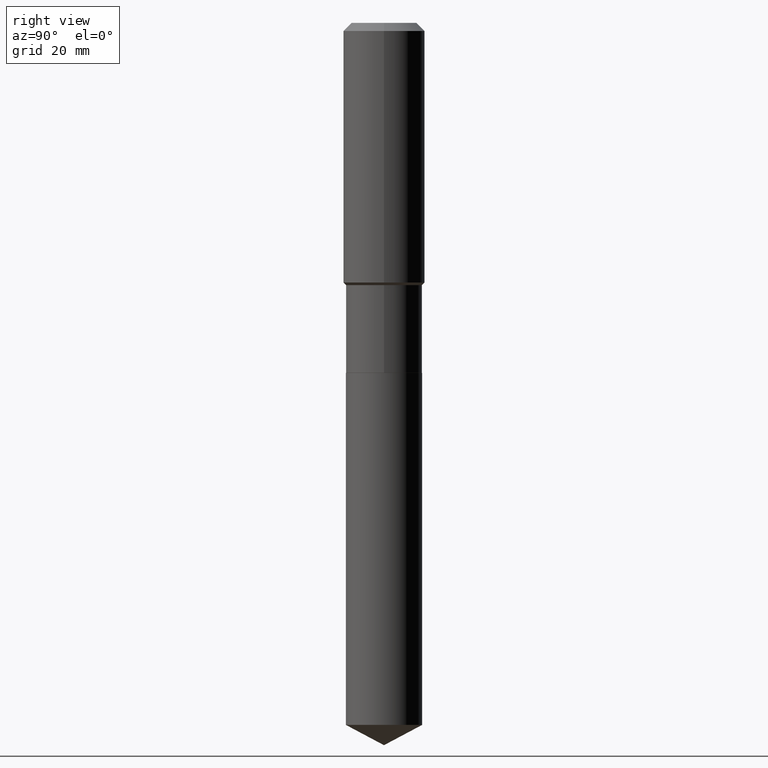
[diagram: clean part render]
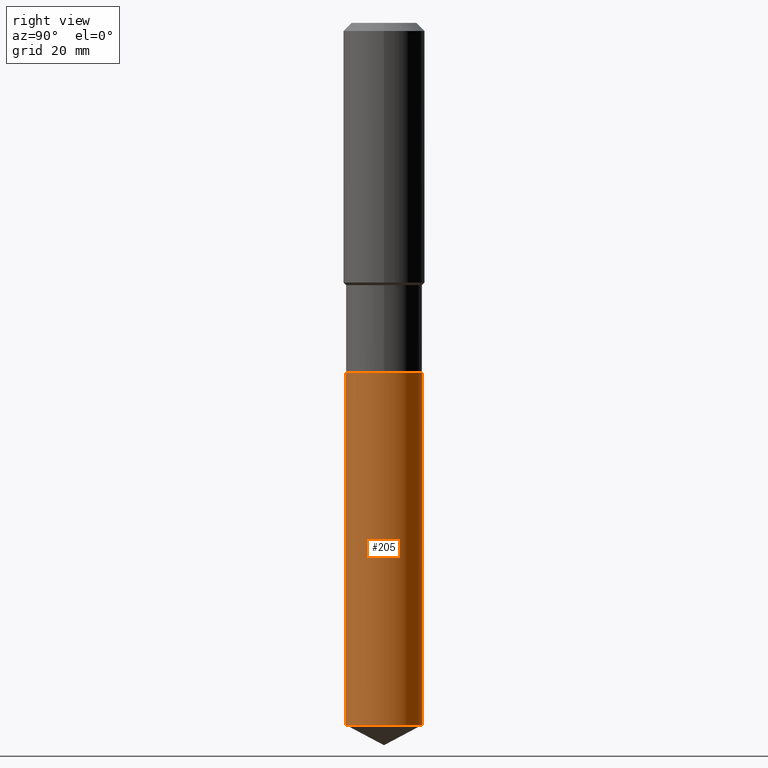
[diagram: same view with one face highlighted and labeled with its STEP entity id]
A machine part, right view. The second image highlights one B-rep face of the part: STEP entity #205.
In plain terms, the highlighted cylindrical surface (partial cylindrical patch) has radius 6.5481 mm, axis along (-0, 0, 1).
Its self-contained STEP definition (entity closure, byte-faithful):
#6 = EDGE_CURVE ( 'NONE', #155, #169, #469, .T. ) ;
#7 = CARTESIAN_POINT ( 'NONE',  ( 5.785001007911558337E-29, -8.259448255167344273E-15, -2.365599999999999703 ) ) ;
#16 = CARTESIAN_POINT ( 'NONE',  ( 1.160379970980934327E-28, -1.656648467126306659E-14, -4.744925308517671247 ) ) ;
#21 = DIRECTION ( 'NONE',  ( -6.982962677686265922E-15, -1.000000000000000000, 4.238709066973255853E-15 ) ) ;
#31 = DIRECTION ( 'NONE',  ( -2.445566682734492897E-29, 3.491341174053679928E-15, 1.000000000000000000 ) ) ;
#51 = DIRECTION ( 'NONE',  ( -2.445566682734492897E-29, 3.491341174053680323E-15, 1.000000000000000000 ) ) ;
#60 = LINE ( 'NONE', #404, #100 ) ;
#72 = CIRCLE ( 'NONE', #460, 0.2577999999999999736 ) ;
#77 = ORIENTED_EDGE ( 'NONE', *, *, #295, .F. ) ;
#100 = VECTOR ( 'NONE', #31, 39.37007874015748143 ) ;
#104 = FACE_OUTER_BOUND ( 'NONE', #139, .T. ) ;
#122 = CARTESIAN_POINT ( 'NONE',  ( 1.831779172789595679E-15, 0.2577999999999917025, -2.365600000000000147 ) ) ;
#123 = CARTESIAN_POINT ( 'NONE',  ( 1.831779172789654054E-15, 0.2577999999999834313, -4.744925308517672136 ) ) ;
#139 = EDGE_LOOP ( 'NONE', ( #455, #223, #77, #445 ) ) ;
#141 = VERTEX_POINT ( 'NONE', #193 ) ;
#149 = VERTEX_POINT ( 'NONE', #164 ) ;
#155 = VERTEX_POINT ( 'NONE', #436 ) ;
#164 = CARTESIAN_POINT ( 'NONE',  ( 1.831779172789654449E-15, 0.2577999999999917025, -2.365600000000000147 ) ) ;
#169 = VERTEX_POINT ( 'NONE', #123 ) ;
#173 = DIRECTION ( 'NONE',  ( -2.445566682734492897E-29, 3.491341174053679928E-15, 1.000000000000000000 ) ) ;
#183 = DIRECTION ( 'NONE',  ( -6.982962677686265922E-15, -1.000000000000000000, 3.179031800229941890E-15 ) ) ;
#186 = VECTOR ( 'NONE', #173, 39.37007874015748143 ) ;
#187 = CYLINDRICAL_SURFACE ( 'NONE', #323, 0.2577999999999999736 ) ;
#193 = CARTESIAN_POINT ( 'NONE',  ( -1.800207778307461580E-15, -0.2578000000000082448, -2.365599999999998815 ) ) ;
#205 = ADVANCED_FACE ( 'NONE', ( #104 ), #187, .T. ) ;
#223 = ORIENTED_EDGE ( 'NONE', *, *, #479, .T. ) ;
#251 = AXIS2_PLACEMENT_3D ( 'NONE', #16, #51, #21 ) ;
#258 = LINE ( 'NONE', #122, #186 ) ;
#295 = EDGE_CURVE ( 'NONE', #141, #149, #72, .T. ) ;
#323 = AXIS2_PLACEMENT_3D ( 'NONE', #338, #414, #183 ) ;
#338 = CARTESIAN_POINT ( 'NONE',  ( 5.785001007911558337E-29, -8.259448255167344273E-15, -2.365599999999999703 ) ) ;
#404 = CARTESIAN_POINT ( 'NONE',  ( -1.800207778307461580E-15, -0.2578000000000082448, -2.365599999999998815 ) ) ;
#408 = EDGE_CURVE ( 'NONE', #155, #141, #60, .T. ) ;
#414 = DIRECTION ( 'NONE',  ( -2.445566682734492897E-29, 3.491341174053680323E-15, 1.000000000000000000 ) ) ;
#419 = DIRECTION ( 'NONE',  ( -6.982962677686265922E-15, -1.000000000000000000, 3.179031800229941890E-15 ) ) ;
#436 = CARTESIAN_POINT ( 'NONE',  ( -1.800207778307403599E-15, -0.2578000000000165715, -4.744925308517670359 ) ) ;
#445 = ORIENTED_EDGE ( 'NONE', *, *, #408, .F. ) ;
#455 = ORIENTED_EDGE ( 'NONE', *, *, #6, .T. ) ;
#456 = DIRECTION ( 'NONE',  ( -2.445566682734492897E-29, 3.491341174053680323E-15, 1.000000000000000000 ) ) ;
#460 = AXIS2_PLACEMENT_3D ( 'NONE', #7, #456, #419 ) ;
#469 = CIRCLE ( 'NONE', #251, 0.2577999999999999736 ) ;
#479 = EDGE_CURVE ( 'NONE', #169, #149, #258, .T. ) ;